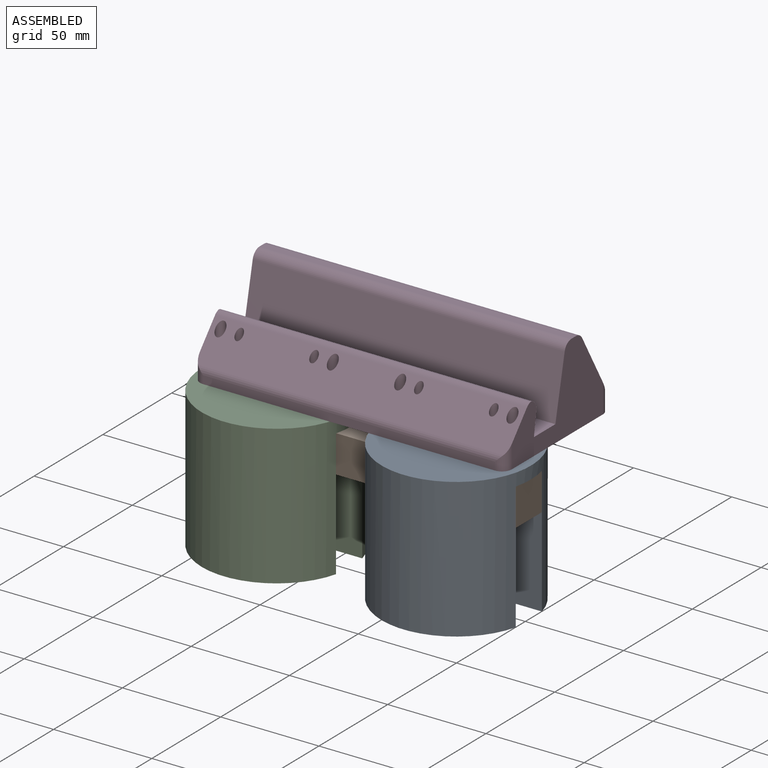
[diagram: assembled view]
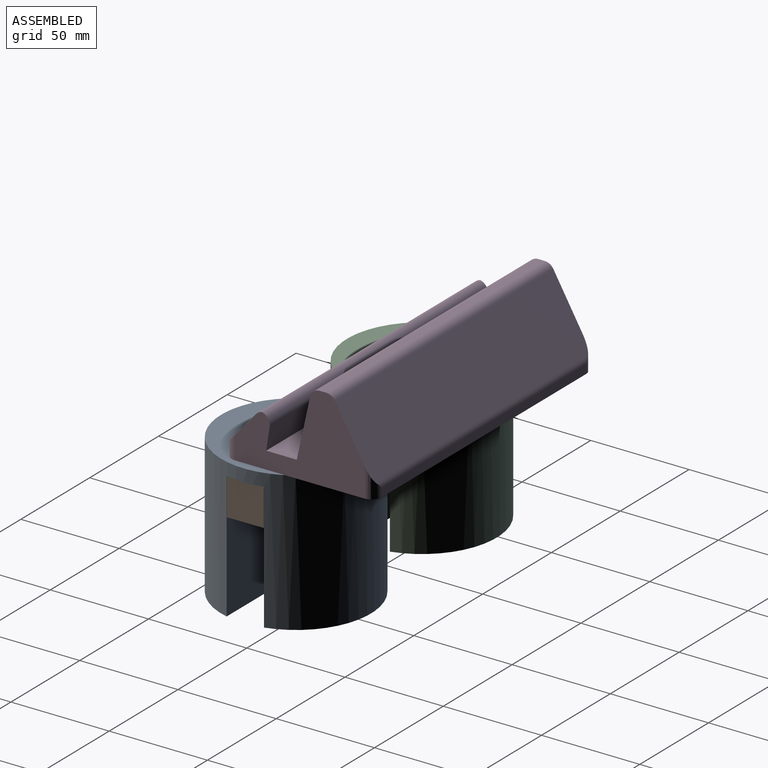
[diagram: assembled view, second angle]
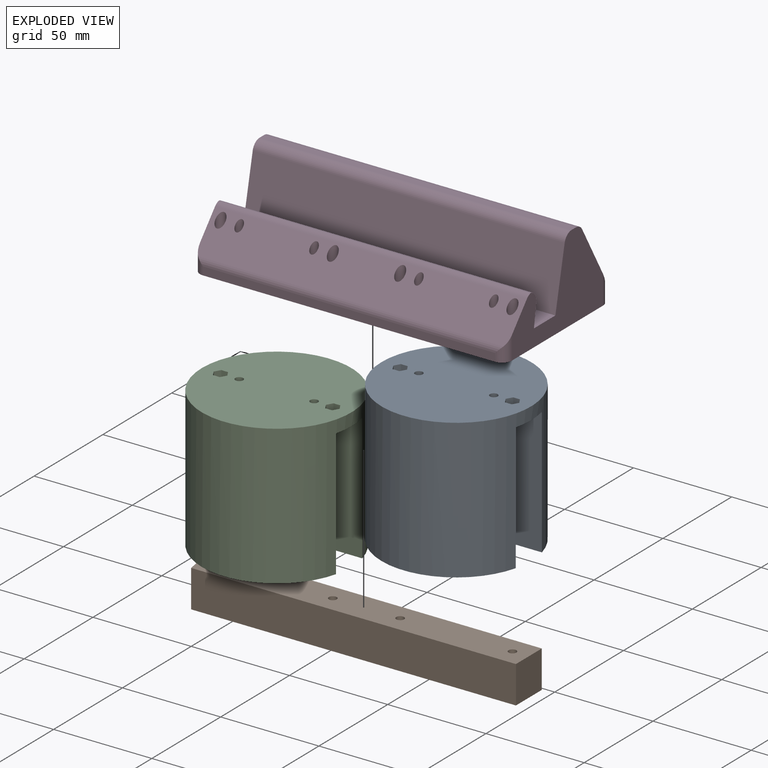
[diagram: exploded view]
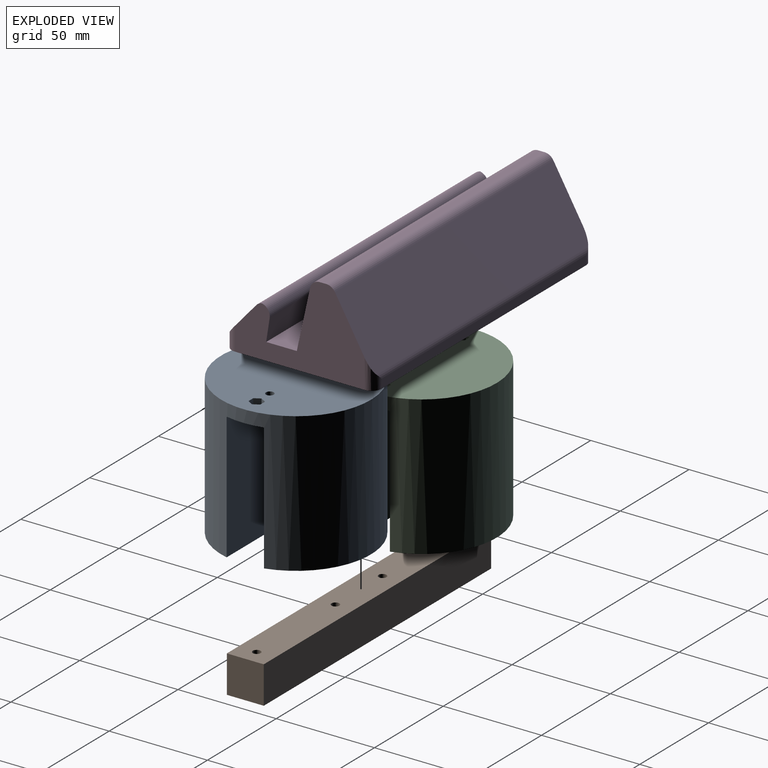
[diagram: exploded view, second angle]
ASSEMBLY  parts=4 mates=3
PART A: 41 faces, bbox 76.2x76.2x71.1 mm
  f0: plane 76.2x18.03mm, normal (0,0,1), area 1273.8mm2, adj f3,f21,f22,f23,f24,f25,f26,f27
  f1: plane 76.2x76.2mm, normal (0,0,-1), area 4472.9mm2, adj f3,f7,f8,f9,f10,f11,f12,f14
  f2: plane 73.78x28.58mm, normal (0,0,1), area 1562mm2, adj f3,f5
  f3: cylinder r=38.1mm len=76.2mm, axis (0,0,-1), area 14531.4mm2, adj f0,f1,f2,f4,f5,f6,f39,f40
  f4: plane 73.78x28.58mm, normal (0,0,1), area 1562mm2, adj f3,f6
  f5: plane 73.78x64.26mm, normal (0,-1,0), area 4741.3mm2, adj f2,f3,f40
  f6: plane 73.78x64.26mm, normal (0,1,0), area 4741.3mm2, adj f3,f4,f39
  f7: plane 3.5x3.46mm, normal (0,-1,0), area 12.1mm2, adj f1,f8,f12,f13
  f8: plane 3.5x3mm, normal (-0.87,-0.5,0), area 12.1mm2, adj f1,f7,f9,f13
  f9: plane 3.5x3mm, normal (-0.87,0.5,0), area 12.1mm2, adj f1,f8,f10,f13
  f10: plane 3.5x3.46mm, normal (0,1,0), area 12.1mm2, adj f1,f9,f11,f13
  f11: plane 3.5x3mm, normal (0.87,0.5,0), area 12.1mm2, adj f1,f10,f12,f13
  f12: plane 3.5x3mm, normal (0.87,-0.5,0), area 12.1mm2, adj f1,f7,f11,f13
  f13: plane 6.93x6mm, normal (0,0,-1), area 18.6mm2, adj f7,f8,f9,f10,f11,f12,f22
  f14: plane 3.5x3mm, normal (0.87,-0.5,0), area 12.1mm2, adj f1,f15,f19,f20
  f15: plane 3.5x3.46mm, normal (0,-1,0), area 12.1mm2, adj f1,f14,f16,f20
  f16: plane 3.5x3mm, normal (-0.87,-0.5,0), area 12.1mm2, adj f1,f15,f17,f20
  f17: plane 3.5x3mm, normal (-0.87,0.5,0), area 12.1mm2, adj f1,f16,f18,f20
  f18: plane 3.5x3.46mm, normal (0,1,0), area 12.1mm2, adj f1,f17,f19,f20
  f19: plane 3.5x3mm, normal (0.87,0.5,0), area 12.1mm2, adj f1,f14,f18,f20
  f20: plane 6.93x6mm, normal (0,0,-1), area 18.6mm2, adj f14,f15,f16,f17,f18,f19,f21
  f21: cylinder r=2mm len=4mm, axis (0,0,-1), area 35.8mm2, adj f0,f20
  f22: cylinder r=2mm len=4mm, axis (0,0,-1), area 35.8mm2, adj f0,f13
  f23: plane 3.5x3.46mm, normal (0,-1,0), area 12.1mm2, adj f0,f24,f28,f29
  f24: plane 3.5x3mm, normal (0.87,-0.5,0), area 12.1mm2, adj f0,f23,f25,f29
  f25: plane 3.5x3mm, normal (0.87,0.5,0), area 12.1mm2, adj f0,f24,f26,f29
  f26: plane 3.5x3.46mm, normal (0,1,0), area 12.1mm2, adj f0,f25,f27,f29
  f27: plane 3.5x3mm, normal (-0.87,0.5,0), area 12.1mm2, adj f0,f26,f28,f29
  f28: plane 3.5x3mm, normal (-0.87,-0.5,0), area 12.1mm2, adj f0,f23,f27,f29
  f29: plane 6.93x6mm, normal (0,0,1), area 18.6mm2, adj f23,f24,f25,f26,f27,f28,f38
  f30: plane 3.5x3mm, normal (-0.87,-0.5,0), area 12.1mm2, adj f0,f31,f35,f36
  f31: plane 3.5x3.46mm, normal (0,-1,0), area 12.1mm2, adj f0,f30,f32,f36
  f32: plane 3.5x3mm, normal (0.87,-0.5,0), area 12.1mm2, adj f0,f31,f33,f36
  f33: plane 3.5x3mm, normal (0.87,0.5,0), area 12.1mm2, adj f0,f32,f34,f36
  f34: plane 3.5x3.46mm, normal (0,1,0), area 12.1mm2, adj f0,f33,f35,f36
  f35: plane 3.5x3mm, normal (-0.87,0.5,0), area 12.1mm2, adj f0,f30,f34,f36
  f36: plane 6.93x6mm, normal (0,0,1), area 18.6mm2, adj f30,f31,f32,f33,f34,f35,f37
  f37: cylinder r=2mm len=4mm, axis (0,0,1), area 35.8mm2, adj f1,f36
  f38: cylinder r=2mm len=4mm, axis (0,0,1), area 35.8mm2, adj f1,f29
  f39: cylinder r=0.51mm len=74.04mm, axis (1,0,0), area 58.9mm2, adj f0,f3,f6
  f40: cylinder r=0.51mm len=74.04mm, axis (-1,0,0), area 58.9mm2, adj f0,f3,f5
PART B: 10 faces, bbox 166.5x18.8x19.1 mm
  f0: plane 165.29x19.05mm, normal (0,1,0), area 3148.7mm2, adj f1,f7,f8,f9
  f1: plane 19.05x18.8mm, normal (-1,0,0), area 358.1mm2, adj f0,f2,f8,f9
  f2: plane 165.29x19.05mm, normal (0,-1,0), area 3148.7mm2, adj f1,f7,f8,f9
  f3: cylinder r=2mm len=19.05mm, axis (0,0,-1), area 239.4mm2, adj f8,f9
  f4: cylinder r=2mm len=19.05mm, axis (0,0,-1), area 239.4mm2, adj f8,f9
  f5: cylinder r=2mm len=19.05mm, axis (0,0,-1), area 239.4mm2, adj f8,f9
  f6: cylinder r=2mm len=19.05mm, axis (0,0,-1), area 239.4mm2, adj f8,f9
  f7: cylinder r=38.1mm len=19.05mm, axis (0,0,-1), area 361.8mm2, adj f0,f2,f8,f9
  f8: plane 166.46x18.8mm, normal (0,0,1), area 3071.2mm2, adj f0,f1,f2,f3,f4,f5,f6,f7
  f9: plane 166.46x18.8mm, normal (0,0,-1), area 3071.2mm2, adj f0,f1,f2,f3,f4,f5,f6,f7
PART C: same geometry as A
PART D: 29 faces, bbox 158.8x76.2x43.5 mm
  f0: plane 158.75x16.83mm, normal (0,-0.75,0.66), area 3347.1mm2, adj f2,f4,f5,f6,f7,f8,f9,f10
  f1: plane 148.59x4.64mm, normal (0,1,0), area 689.6mm2, adj f13,f23,f24,f25
  f2: plane 66.04x43.52mm, normal (-1,0,0), area 1603.4mm2, adj f0,f13,f14,f15,f16,f17,f18,f19
  f3: plane 148.59x4.09mm, normal (0,-1,0), area 608.1mm2, adj f13,f26,f27,f28
  f4: cylinder r=2.5mm len=23.42mm, axis (0,0,-1), area 322.4mm2, adj f0,f13
  f5: cylinder r=2mm len=22.84mm, axis (0,0,-1), area 257.9mm2, adj f0,f13
  f6: cylinder r=2mm len=22.84mm, axis (0,0,-1), area 257.9mm2, adj f0,f13
  f7: cylinder r=2.5mm len=23.42mm, axis (0,0,-1), area 322.4mm2, adj f0,f13
  f8: cylinder r=2mm len=22.84mm, axis (0,0,-1), area 257.9mm2, adj f0,f13
  f9: cylinder r=2.5mm len=23.42mm, axis (0,0,-1), area 322.4mm2, adj f0,f13
  f10: cylinder r=2mm len=22.84mm, axis (0,0,-1), area 257.9mm2, adj f0,f13
  f11: cylinder r=2.5mm len=23.42mm, axis (0,0,-1), area 322.4mm2, adj f0,f13
  f12: plane 66.04x43.52mm, normal (1,0,0), area 1603.4mm2, adj f0,f13,f14,f15,f16,f17,f18,f19
  f13: plane 158.75x76.2mm, normal (0,0,-1), area 11945.8mm2, adj f1,f2,f3,f4,f5,f6,f7,f8
  f14: plane 158.75x33.8mm, normal (0,0.87,0.5), area 6180.4mm2, adj f2,f12,f19,f23,f24,f25
  f15: plane 158.75x3.3mm, normal (0,0,1), area 523.3mm2, adj f2,f12,f19,f20
  f16: plane 158.75x30.83mm, normal (0,-0.98,0.21), area 5011mm2, adj f2,f12,f17,f20
  f17: plane 158.75x15.59mm, normal (0,0,1), area 2474.2mm2, adj f2,f12,f16,f18
  f18: plane 158.75x11.45mm, normal (0,0.99,-0.15), area 1838.8mm2, adj f2,f12,f17,f21
  f19: cylinder r=5.08mm len=158.75mm, axis (1,0,0), area 845.1mm2, adj f2,f12,f14,f15
  f20: cylinder r=5.08mm len=158.75mm, axis (1,0,0), area 1092.8mm2, adj f2,f12,f15,f16
  f21: cylinder r=5.08mm len=158.75mm, axis (1,0,0), area 1231.1mm2, adj f2,f12,f18,f22
  f22: cylinder r=5.08mm len=158.75mm, axis (1,0,0), area 527.4mm2, adj f0,f2,f12,f21
  f23: cylinder r=5.08mm len=14.81mm, axis (0,0,-1), area 72.2mm2, adj f1,f12,f13,f14,f24
  f24: cylinder r=5.08mm len=153.66mm, axis (-1,0,0), area 401.6mm2, adj f1,f14,f23,f25
  f25: cylinder r=5.08mm len=14.81mm, axis (0,0,1), area 72.2mm2, adj f1,f2,f13,f14,f24
  f26: cylinder r=5.08mm len=11.81mm, axis (0,0,1), area 62.4mm2, adj f0,f3,f12,f13,f27
  f27: cylinder r=5.08mm len=155.28mm, axis (1,0,0), area 555.1mm2, adj f0,f3,f26,f28
  f28: cylinder r=5.08mm len=11.81mm, axis (0,0,-1), area 62.4mm2, adj f0,f2,f3,f13,f27
PLACE A rot(axis=(0,-1,0),180deg) t=(267.77,81.7,-77.81)mm
PLACE B rot(axis=(0,-1,0),180deg) t=(353.56,81.68,-84.16)mm
PLACE C rot(axis=(0,-1,0),180deg) t=(176.33,81.7,-77.81)mm fixed
PLACE D t=(219.89,-70.11,-77.81)mm
MATE fastened A.f21 <-> B.f4  axis (0,0,-1) through (340.22,-16.73,-84.16)mm
MATE fastened D.f5 <-> C.f38  axis (0,0,-1) through (201.15,-16.73,-77.81)mm
MATE fastened B.f5 <-> C.f22  axis (0,0,1) through (191.63,-16.73,-84.16)mm
